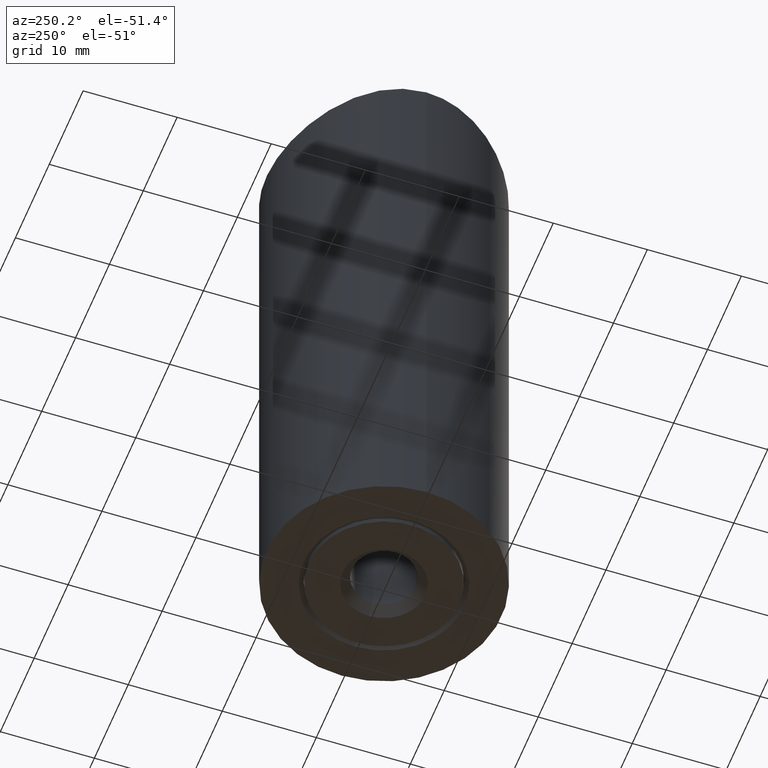
[diagram: clean part render]
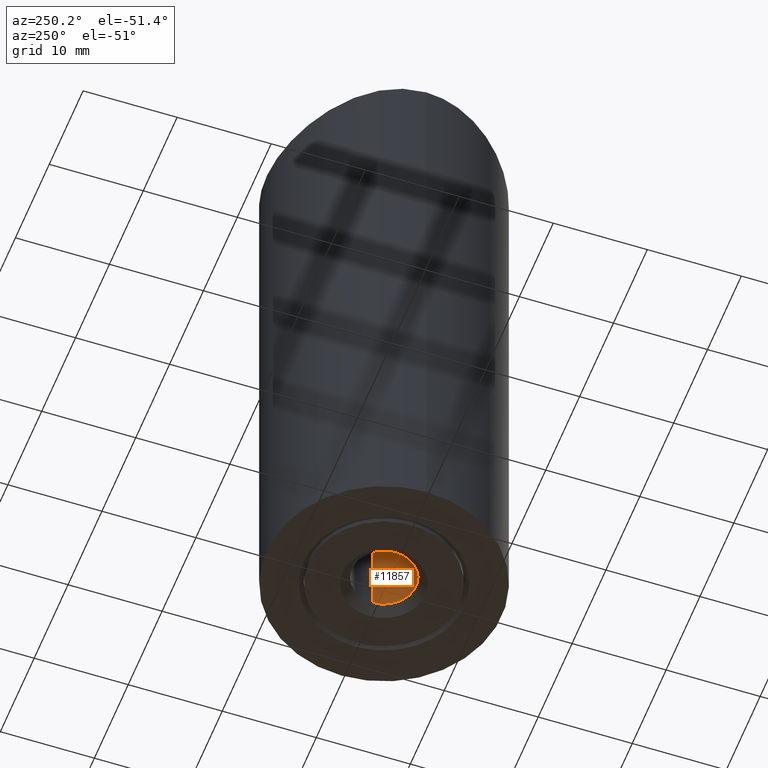
[diagram: same view with one face highlighted and labeled with its STEP entity id]
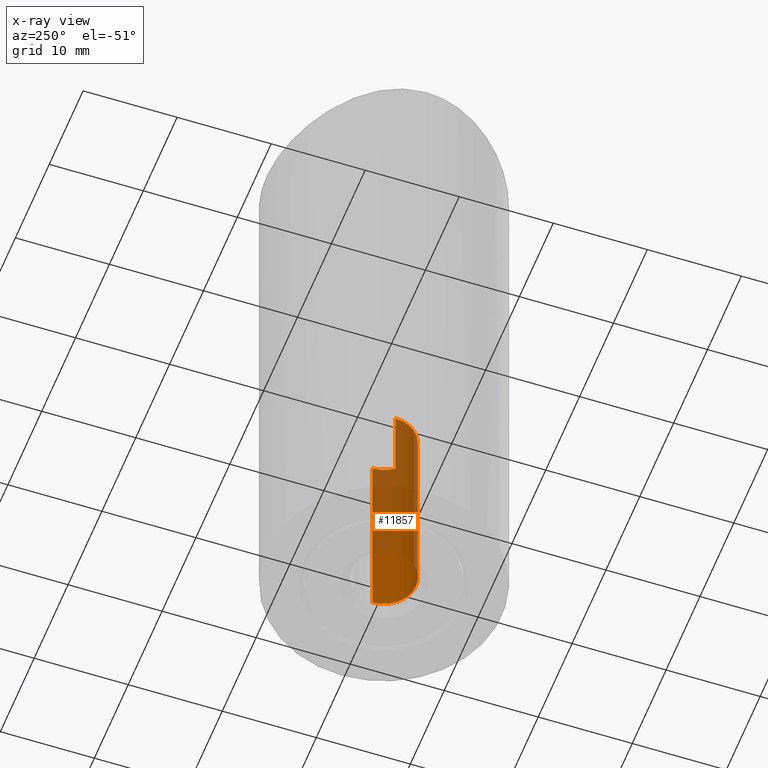
[diagram: x-ray of the same camera — body ghosted, the highlighted face saturated]
A machine part, auxiliary view. The second image highlights one B-rep face of the part: STEP entity #11857.
The next image is the same camera in x-ray: the body ghosted, the highlighted face saturated — about 59% of this face is hidden behind the body in this view.
In plain terms, the highlighted cylindrical surface (edge-blend (fillet) strip) has radius 3.4 mm, axis along (0, 0, 1).
Its self-contained STEP definition (entity closure, byte-faithful):
#174 = CARTESIAN_POINT ( 'NONE',  ( 3.399999999999991500, 0.0000000000000000000, -22.49999999999999300 ) ) ;
#685 = CIRCLE ( 'NONE', #7216, 3.399999999999991500 ) ;
#688 = ORIENTED_EDGE ( 'NONE', *, *, #9243, .F. ) ;
#1014 = EDGE_CURVE ( 'NONE', #2508, #12651, #8155, .T. ) ;
#1038 = CARTESIAN_POINT ( 'NONE',  ( 0.0000000000000000000, 0.0000000000000000000, -22.49999999999999300 ) ) ;
#1067 = EDGE_CURVE ( 'NONE', #9026, #2508, #685, .T. ) ;
#1271 = DIRECTION ( 'NONE',  ( -0.0000000000000000000, -0.0000000000000000000, 1.000000000000000000 ) ) ;
#1300 = FACE_OUTER_BOUND ( 'NONE', #3565, .T. ) ;
#2037 = CARTESIAN_POINT ( 'NONE',  ( 3.399999999999991500, 0.0000000000000000000, 0.0000000000000000000 ) ) ;
#2508 = VERTEX_POINT ( 'NONE', #10274 ) ;
#3565 = EDGE_LOOP ( 'NONE', ( #12628, #9280, #4400, #688 ) ) ;
#4048 = CIRCLE ( 'NONE', #4160, 3.399999999999991500 ) ;
#4160 = AXIS2_PLACEMENT_3D ( 'NONE', #9961, #6520, #14318 ) ;
#4400 = ORIENTED_EDGE ( 'NONE', *, *, #11430, .T. ) ;
#4649 = CARTESIAN_POINT ( 'NONE',  ( 0.0000000000000000000, 0.0000000000000000000, 0.0000000000000000000 ) ) ;
#5472 = DIRECTION ( 'NONE',  ( -1.000000000000000000, 0.0000000000000000000, 0.0000000000000000000 ) ) ;
#5801 = VECTOR ( 'NONE', #10018, 1000.000000000000000 ) ;
#6520 = DIRECTION ( 'NONE',  ( 0.0000000000000000000, 0.0000000000000000000, 1.000000000000000000 ) ) ;
#7216 = AXIS2_PLACEMENT_3D ( 'NONE', #1038, #12180, #5472 ) ;
#8097 = LINE ( 'NONE', #2037, #5801 ) ;
#8155 = LINE ( 'NONE', #13313, #14059 ) ;
#9026 = VERTEX_POINT ( 'NONE', #174 ) ;
#9243 = EDGE_CURVE ( 'NONE', #9026, #11364, #8097, .T. ) ;
#9280 = ORIENTED_EDGE ( 'NONE', *, *, #1014, .T. ) ;
#9961 = CARTESIAN_POINT ( 'NONE',  ( 0.0000000000000000000, 0.0000000000000000000, -0.9999999999999940000 ) ) ;
#10018 = DIRECTION ( 'NONE',  ( -0.0000000000000000000, -0.0000000000000000000, 1.000000000000000000 ) ) ;
#10274 = CARTESIAN_POINT ( 'NONE',  ( -3.399999999999991500, 4.163799117100990700E-016, -22.49999999999999300 ) ) ;
#11364 = VERTEX_POINT ( 'NONE', #12946 ) ;
#11368 = DIRECTION ( 'NONE',  ( 1.000000000000000000, 0.0000000000000000000, 0.0000000000000000000 ) ) ;
#11430 = EDGE_CURVE ( 'NONE', #12651, #11364, #4048, .T. ) ;
#11857 = ADVANCED_FACE ( 'NONE', ( #1300 ), #14319, .F. ) ;
#11898 = AXIS2_PLACEMENT_3D ( 'NONE', #4649, #1271, #11368 ) ;
#12180 = DIRECTION ( 'NONE',  ( -0.0000000000000000000, -0.0000000000000000000, -1.000000000000000000 ) ) ;
#12330 = DIRECTION ( 'NONE',  ( -0.0000000000000000000, -0.0000000000000000000, 1.000000000000000000 ) ) ;
#12628 = ORIENTED_EDGE ( 'NONE', *, *, #1067, .T. ) ;
#12651 = VERTEX_POINT ( 'NONE', #13754 ) ;
#12946 = CARTESIAN_POINT ( 'NONE',  ( 3.399999999999991500, 0.0000000000000000000, -0.9999999999999940000 ) ) ;
#13313 = CARTESIAN_POINT ( 'NONE',  ( -3.399999999999991500, 4.163799117100990700E-016, 0.0000000000000000000 ) ) ;
#13754 = CARTESIAN_POINT ( 'NONE',  ( -3.399999999999991500, 4.163799117100990700E-016, -0.9999999999999940000 ) ) ;
#14059 = VECTOR ( 'NONE', #12330, 1000.000000000000000 ) ;
#14318 = DIRECTION ( 'NONE',  ( 1.000000000000000000, 0.0000000000000000000, 0.0000000000000000000 ) ) ;
#14319 = CYLINDRICAL_SURFACE ( 'NONE', #11898, 3.399999999999991500 ) ;